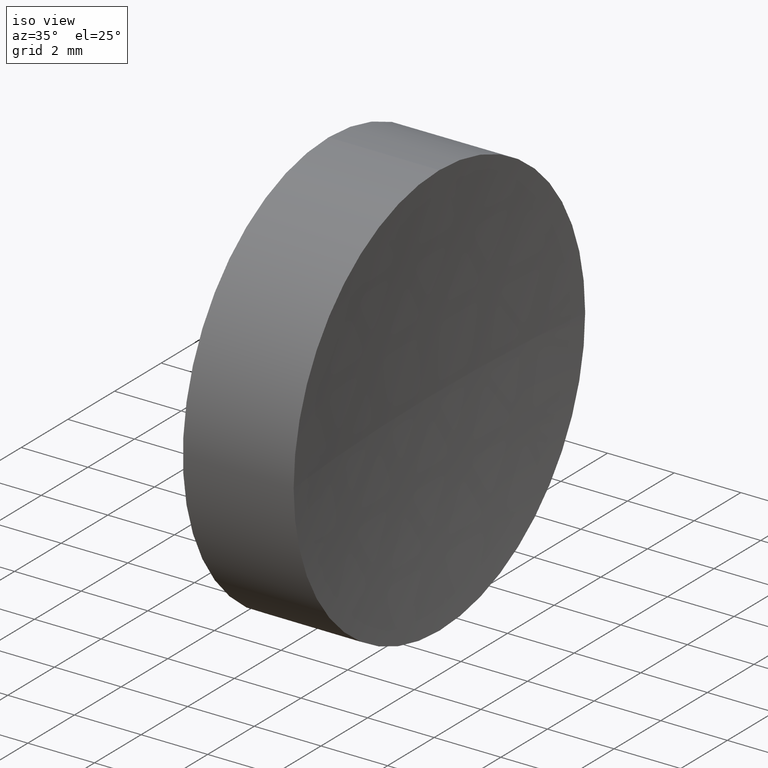
[diagram: clean part render]
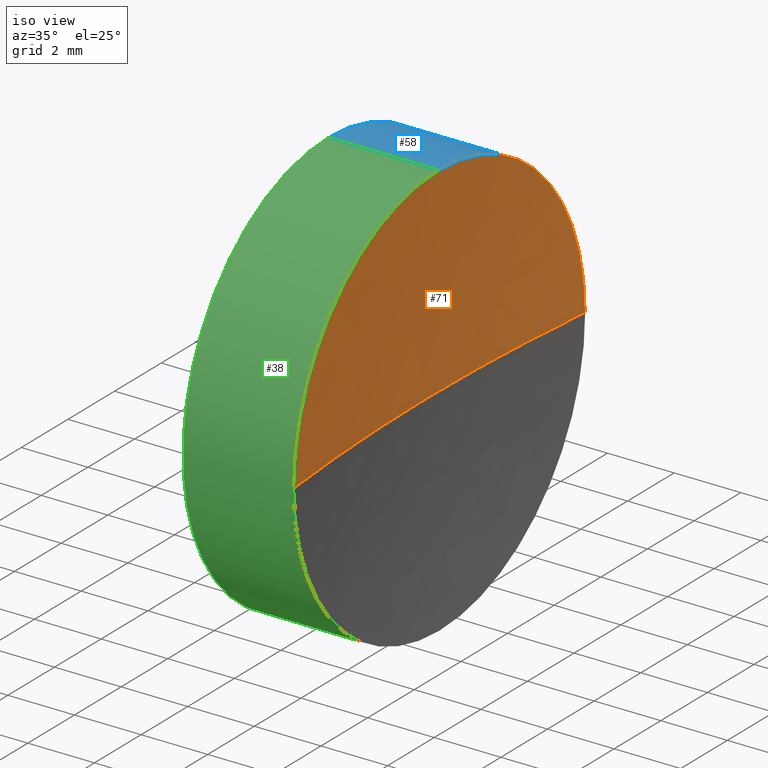
[diagram: same view with three faces highlighted in distinct colors, each labeled with its STEP entity id]
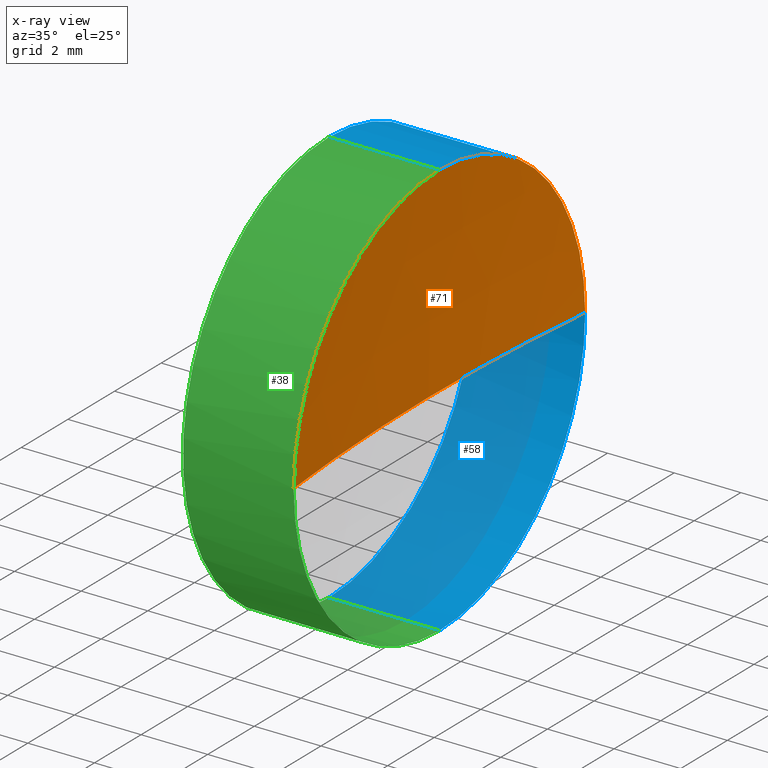
[diagram: x-ray of the same camera — body ghosted, the three highlighted faces saturated]
A machine part, iso view with three faces highlighted in distinct colors.
The next image is the same camera in x-ray (body ghosted, the three faces saturated) — at least one of them is partly hidden behind the body in this view.
Their STEP definitions:

[orange] entity #71 — the highlighted spherical surface has radius 60 mm.
#1 = CARTESIAN_POINT ( 'NONE',  ( 120.5463276019670400, 34.68901056168622400, 0.0000000000000000000 ) ) ;
#11 = CIRCLE ( 'NONE', #79, 6.250000000000012400 ) ;
#14 = ORIENTED_EDGE ( 'NONE', *, *, #84, .T. ) ;
#22 = CARTESIAN_POINT ( 'NONE',  ( 120.5463276019670400, 34.68901056168622400, 0.0000000000000000000 ) ) ;
#25 = CARTESIAN_POINT ( 'NONE',  ( 60.87273629056698400, 34.68901056168621700, 0.0000000000000000000 ) ) ;
#35 = CARTESIAN_POINT ( 'NONE',  ( 60.87273629056698400, 28.43901056168619900, 0.0000000000000000000 ) ) ;
#40 = AXIS2_PLACEMENT_3D ( 'NONE', #152, #110, #53 ) ;
#42 = CIRCLE ( 'NONE', #97, 60.00000000000000700 ) ;
#44 = CIRCLE ( 'NONE', #182, 60.00000000000000700 ) ;
#51 = DIRECTION ( 'NONE',  ( 0.0000000000000000000, -1.000000000000000000, 0.0000000000000000000 ) ) ;
#52 = CIRCLE ( 'NONE', #40, 6.250000000000012400 ) ;
#53 = DIRECTION ( 'NONE',  ( 0.0000000000000000000, 0.0000000000000000000, 1.000000000000000000 ) ) ;
#54 = DIRECTION ( 'NONE',  ( 0.0000000000000000000, -1.000000000000000000, -1.224646799147353200E-016 ) ) ;
#61 = ORIENTED_EDGE ( 'NONE', *, *, #149, .F. ) ;
#70 = CARTESIAN_POINT ( 'NONE',  ( 120.5463276019670400, 34.68901056168622400, 0.0000000000000000000 ) ) ;
#71 = ADVANCED_FACE ( 'NONE', ( #121 ), #154, .F. ) ;
#76 = DIRECTION ( 'NONE',  ( 0.0000000000000000000, 0.0000000000000000000, 1.000000000000000000 ) ) ;
#78 = ORIENTED_EDGE ( 'NONE', *, *, #133, .F. ) ;
#79 = AXIS2_PLACEMENT_3D ( 'NONE', #25, #80, #107 ) ;
#80 = DIRECTION ( 'NONE',  ( -1.000000000000000000, -0.0000000000000000000, -0.0000000000000000000 ) ) ;
#84 = EDGE_CURVE ( 'NONE', #101, #96, #44, .T. ) ;
#96 = VERTEX_POINT ( 'NONE', #151 ) ;
#97 = AXIS2_PLACEMENT_3D ( 'NONE', #70, #137, #54 ) ;
#101 = VERTEX_POINT ( 'NONE', #35 ) ;
#103 = AXIS2_PLACEMENT_3D ( 'NONE', #1, #76, #51 ) ;
#107 = DIRECTION ( 'NONE',  ( 0.0000000000000000000, 0.0000000000000000000, 1.000000000000000000 ) ) ;
#110 = DIRECTION ( 'NONE',  ( -1.000000000000000000, -0.0000000000000000000, -0.0000000000000000000 ) ) ;
#113 = EDGE_LOOP ( 'NONE', ( #185, #78, #61, #14 ) ) ;
#120 = CARTESIAN_POINT ( 'NONE',  ( 60.87273629056698400, 34.68901056168621700, 6.250000000000012400 ) ) ;
#121 = FACE_OUTER_BOUND ( 'NONE', #113, .T. ) ;
#124 = DIRECTION ( 'NONE',  ( 0.0000000000000000000, 0.0000000000000000000, -1.000000000000000000 ) ) ;
#133 = EDGE_CURVE ( 'NONE', #160, #184, #52, .T. ) ;
#137 = DIRECTION ( 'NONE',  ( 0.0000000000000000000, -1.224646799147353200E-016, 1.000000000000000000 ) ) ;
#149 = EDGE_CURVE ( 'NONE', #101, #160, #11, .T. ) ;
#150 = DIRECTION ( 'NONE',  ( -1.000000000000000000, 0.0000000000000000000, 0.0000000000000000000 ) ) ;
#151 = CARTESIAN_POINT ( 'NONE',  ( 60.54632760196703600, 34.68901056168621700, 0.0000000000000000000 ) ) ;
#152 = CARTESIAN_POINT ( 'NONE',  ( 60.87273629056698400, 34.68901056168621700, 0.0000000000000000000 ) ) ;
#154 = SPHERICAL_SURFACE ( 'NONE', #103, 60.00000000000000700 ) ;
#160 = VERTEX_POINT ( 'NONE', #120 ) ;
#161 = EDGE_CURVE ( 'NONE', #184, #96, #42, .T. ) ;
#182 = AXIS2_PLACEMENT_3D ( 'NONE', #22, #124, #150 ) ;
#183 = CARTESIAN_POINT ( 'NONE',  ( 60.87273629056698400, 40.93901056168625300, 7.654042494670984200E-016 ) ) ;
#184 = VERTEX_POINT ( 'NONE', #183 ) ;
#185 = ORIENTED_EDGE ( 'NONE', *, *, #161, .F. ) ;

[blue] entity #58 — the highlighted cylindrical surface (partial cylindrical patch) has radius 6.25 mm, axis along (-1, -0, -0).
#2 = CIRCLE ( 'NONE', #29, 6.249999999999998200 ) ;
#6 = ORIENTED_EDGE ( 'NONE', *, *, #128, .F. ) ;
#8 = DIRECTION ( 'NONE',  ( 0.0000000000000000000, 0.0000000000000000000, 1.000000000000000000 ) ) ;
#9 = CARTESIAN_POINT ( 'NONE',  ( 54.49257150108255100, 34.68901056168621700, 6.250000000000005300 ) ) ;
#12 = CARTESIAN_POINT ( 'NONE',  ( 57.54632776745975800, 34.68901056168621700, -6.249999999999998200 ) ) ;
#15 = EDGE_CURVE ( 'NONE', #175, #169, #27, .T. ) ;
#19 = ORIENTED_EDGE ( 'NONE', *, *, #133, .T. ) ;
#21 = AXIS2_PLACEMENT_3D ( 'NONE', #34, #181, #8 ) ;
#26 = ORIENTED_EDGE ( 'NONE', *, *, #68, .T. ) ;
#27 = LINE ( 'NONE', #105, #30 ) ;
#28 = ORIENTED_EDGE ( 'NONE', *, *, #15, .T. ) ;
#29 = AXIS2_PLACEMENT_3D ( 'NONE', #119, #132, #66 ) ;
#30 = VECTOR ( 'NONE', #116, 1000.000000000000000 ) ;
#34 = CARTESIAN_POINT ( 'NONE',  ( 60.87273629056698400, 34.68901056168621700, 0.0000000000000000000 ) ) ;
#40 = AXIS2_PLACEMENT_3D ( 'NONE', #152, #110, #53 ) ;
#46 = CARTESIAN_POINT ( 'NONE',  ( 54.49257150108255100, 34.68901056168621700, 0.0000000000000000000 ) ) ;
#52 = CIRCLE ( 'NONE', #40, 6.250000000000012400 ) ;
#53 = DIRECTION ( 'NONE',  ( 0.0000000000000000000, 0.0000000000000000000, 1.000000000000000000 ) ) ;
#58 = ADVANCED_FACE ( 'NONE', ( #148 ), #87, .T. ) ;
#59 = ORIENTED_EDGE ( 'NONE', *, *, #153, .F. ) ;
#64 = AXIS2_PLACEMENT_3D ( 'NONE', #46, #118, #77 ) ;
#66 = DIRECTION ( 'NONE',  ( 0.0000000000000000000, 0.0000000000000000000, 1.000000000000000000 ) ) ;
#68 = EDGE_CURVE ( 'NONE', #184, #175, #130, .T. ) ;
#77 = DIRECTION ( 'NONE',  ( 0.0000000000000000000, 0.0000000000000000000, 1.000000000000000000 ) ) ;
#82 = VECTOR ( 'NONE', #123, 1000.000000000000000 ) ;
#87 = CYLINDRICAL_SURFACE ( 'NONE', #64, 6.250000000000005300 ) ;
#88 = EDGE_LOOP ( 'NONE', ( #26, #28, #6, #59, #19 ) ) ;
#105 = CARTESIAN_POINT ( 'NONE',  ( 54.49257150108255100, 34.68901056168621700, -6.250000000000005300 ) ) ;
#110 = DIRECTION ( 'NONE',  ( -1.000000000000000000, -0.0000000000000000000, -0.0000000000000000000 ) ) ;
#115 = LINE ( 'NONE', #9, #82 ) ;
#116 = DIRECTION ( 'NONE',  ( -1.000000000000000000, -0.0000000000000000000, -0.0000000000000000000 ) ) ;
#118 = DIRECTION ( 'NONE',  ( -1.000000000000000000, -0.0000000000000000000, -0.0000000000000000000 ) ) ;
#119 = CARTESIAN_POINT ( 'NONE',  ( 57.54632776745975800, 34.68901056168621700, 0.0000000000000000000 ) ) ;
#120 = CARTESIAN_POINT ( 'NONE',  ( 60.87273629056698400, 34.68901056168621700, 6.250000000000012400 ) ) ;
#123 = DIRECTION ( 'NONE',  ( -1.000000000000000000, -0.0000000000000000000, -0.0000000000000000000 ) ) ;
#128 = EDGE_CURVE ( 'NONE', #129, #169, #2, .T. ) ;
#129 = VERTEX_POINT ( 'NONE', #167 ) ;
#130 = CIRCLE ( 'NONE', #21, 6.250000000000012400 ) ;
#132 = DIRECTION ( 'NONE',  ( -1.000000000000000000, -0.0000000000000000000, -0.0000000000000000000 ) ) ;
#133 = EDGE_CURVE ( 'NONE', #160, #184, #52, .T. ) ;
#148 = FACE_OUTER_BOUND ( 'NONE', #88, .T. ) ;
#152 = CARTESIAN_POINT ( 'NONE',  ( 60.87273629056698400, 34.68901056168621700, 0.0000000000000000000 ) ) ;
#153 = EDGE_CURVE ( 'NONE', #160, #129, #115, .T. ) ;
#160 = VERTEX_POINT ( 'NONE', #120 ) ;
#167 = CARTESIAN_POINT ( 'NONE',  ( 57.54632776745975800, 34.68901056168621700, 6.249999999999998200 ) ) ;
#169 = VERTEX_POINT ( 'NONE', #12 ) ;
#175 = VERTEX_POINT ( 'NONE', #179 ) ;
#179 = CARTESIAN_POINT ( 'NONE',  ( 60.87273629056698400, 34.68901056168621700, -6.250000000000012400 ) ) ;
#181 = DIRECTION ( 'NONE',  ( -1.000000000000000000, -0.0000000000000000000, -0.0000000000000000000 ) ) ;
#183 = CARTESIAN_POINT ( 'NONE',  ( 60.87273629056698400, 40.93901056168625300, 7.654042494670984200E-016 ) ) ;
#184 = VERTEX_POINT ( 'NONE', #183 ) ;

[green] entity #38 — the highlighted cylindrical surface (partial cylindrical patch) has radius 6.25 mm, axis along (-1, -0, -0).
#4 = CARTESIAN_POINT ( 'NONE',  ( 54.49257150108255100, 34.68901056168621700, 0.0000000000000000000 ) ) ;
#7 = DIRECTION ( 'NONE',  ( 0.0000000000000000000, 0.0000000000000000000, 1.000000000000000000 ) ) ;
#9 = CARTESIAN_POINT ( 'NONE',  ( 54.49257150108255100, 34.68901056168621700, 6.250000000000005300 ) ) ;
#11 = CIRCLE ( 'NONE', #79, 6.250000000000012400 ) ;
#12 = CARTESIAN_POINT ( 'NONE',  ( 57.54632776745975800, 34.68901056168621700, -6.249999999999998200 ) ) ;
#15 = EDGE_CURVE ( 'NONE', #175, #169, #27, .T. ) ;
#24 = DIRECTION ( 'NONE',  ( -1.000000000000000000, -0.0000000000000000000, -0.0000000000000000000 ) ) ;
#25 = CARTESIAN_POINT ( 'NONE',  ( 60.87273629056698400, 34.68901056168621700, 0.0000000000000000000 ) ) ;
#27 = LINE ( 'NONE', #105, #30 ) ;
#30 = VECTOR ( 'NONE', #116, 1000.000000000000000 ) ;
#35 = CARTESIAN_POINT ( 'NONE',  ( 60.87273629056698400, 28.43901056168619900, 0.0000000000000000000 ) ) ;
#38 = ADVANCED_FACE ( 'NONE', ( #136 ), #100, .T. ) ;
#49 = DIRECTION ( 'NONE',  ( -1.000000000000000000, -0.0000000000000000000, -0.0000000000000000000 ) ) ;
#60 = AXIS2_PLACEMENT_3D ( 'NONE', #108, #83, #180 ) ;
#62 = AXIS2_PLACEMENT_3D ( 'NONE', #135, #24, #122 ) ;
#79 = AXIS2_PLACEMENT_3D ( 'NONE', #25, #80, #107 ) ;
#80 = DIRECTION ( 'NONE',  ( -1.000000000000000000, -0.0000000000000000000, -0.0000000000000000000 ) ) ;
#82 = VECTOR ( 'NONE', #123, 1000.000000000000000 ) ;
#83 = DIRECTION ( 'NONE',  ( -1.000000000000000000, -0.0000000000000000000, -0.0000000000000000000 ) ) ;
#85 = ORIENTED_EDGE ( 'NONE', *, *, #143, .T. ) ;
#90 = AXIS2_PLACEMENT_3D ( 'NONE', #4, #49, #7 ) ;
#98 = ORIENTED_EDGE ( 'NONE', *, *, #149, .T. ) ;
#100 = CYLINDRICAL_SURFACE ( 'NONE', #90, 6.250000000000005300 ) ;
#101 = VERTEX_POINT ( 'NONE', #35 ) ;
#105 = CARTESIAN_POINT ( 'NONE',  ( 54.49257150108255100, 34.68901056168621700, -6.250000000000005300 ) ) ;
#106 = EDGE_CURVE ( 'NONE', #169, #129, #178, .T. ) ;
#107 = DIRECTION ( 'NONE',  ( 0.0000000000000000000, 0.0000000000000000000, 1.000000000000000000 ) ) ;
#108 = CARTESIAN_POINT ( 'NONE',  ( 60.87273629056698400, 34.68901056168621700, 0.0000000000000000000 ) ) ;
#115 = LINE ( 'NONE', #9, #82 ) ;
#116 = DIRECTION ( 'NONE',  ( -1.000000000000000000, -0.0000000000000000000, -0.0000000000000000000 ) ) ;
#120 = CARTESIAN_POINT ( 'NONE',  ( 60.87273629056698400, 34.68901056168621700, 6.250000000000012400 ) ) ;
#122 = DIRECTION ( 'NONE',  ( 0.0000000000000000000, 0.0000000000000000000, 1.000000000000000000 ) ) ;
#123 = DIRECTION ( 'NONE',  ( -1.000000000000000000, -0.0000000000000000000, -0.0000000000000000000 ) ) ;
#129 = VERTEX_POINT ( 'NONE', #167 ) ;
#134 = ORIENTED_EDGE ( 'NONE', *, *, #15, .F. ) ;
#135 = CARTESIAN_POINT ( 'NONE',  ( 57.54632776745975800, 34.68901056168621700, 0.0000000000000000000 ) ) ;
#136 = FACE_OUTER_BOUND ( 'NONE', #165, .T. ) ;
#143 = EDGE_CURVE ( 'NONE', #175, #101, #159, .T. ) ;
#146 = ORIENTED_EDGE ( 'NONE', *, *, #153, .T. ) ;
#149 = EDGE_CURVE ( 'NONE', #101, #160, #11, .T. ) ;
#153 = EDGE_CURVE ( 'NONE', #160, #129, #115, .T. ) ;
#159 = CIRCLE ( 'NONE', #60, 6.250000000000012400 ) ;
#160 = VERTEX_POINT ( 'NONE', #120 ) ;
#165 = EDGE_LOOP ( 'NONE', ( #134, #85, #98, #146, #172 ) ) ;
#167 = CARTESIAN_POINT ( 'NONE',  ( 57.54632776745975800, 34.68901056168621700, 6.249999999999998200 ) ) ;
#169 = VERTEX_POINT ( 'NONE', #12 ) ;
#172 = ORIENTED_EDGE ( 'NONE', *, *, #106, .F. ) ;
#175 = VERTEX_POINT ( 'NONE', #179 ) ;
#178 = CIRCLE ( 'NONE', #62, 6.249999999999998200 ) ;
#179 = CARTESIAN_POINT ( 'NONE',  ( 60.87273629056698400, 34.68901056168621700, -6.250000000000012400 ) ) ;
#180 = DIRECTION ( 'NONE',  ( 0.0000000000000000000, 0.0000000000000000000, 1.000000000000000000 ) ) ;